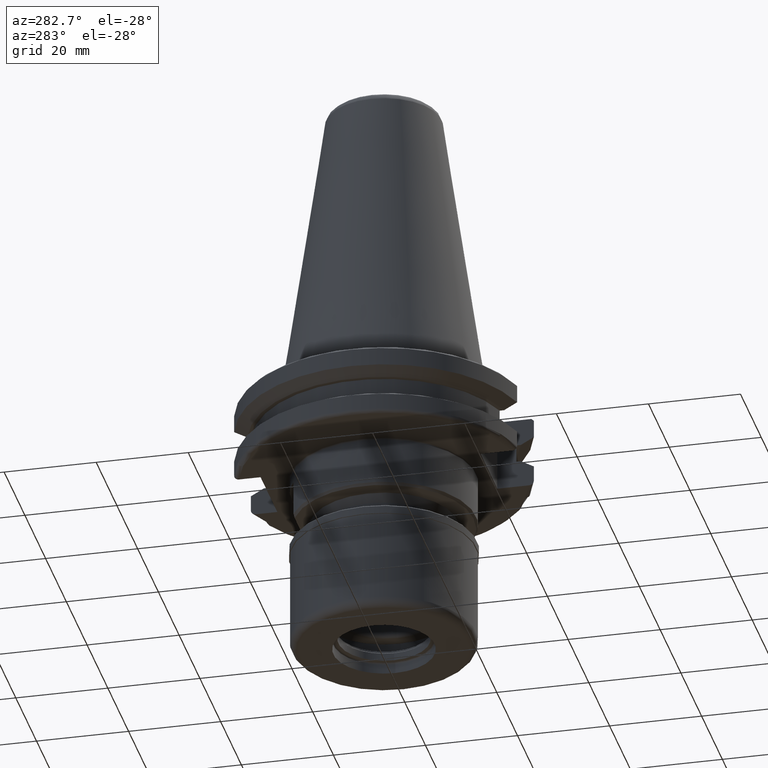
[diagram: clean part render]
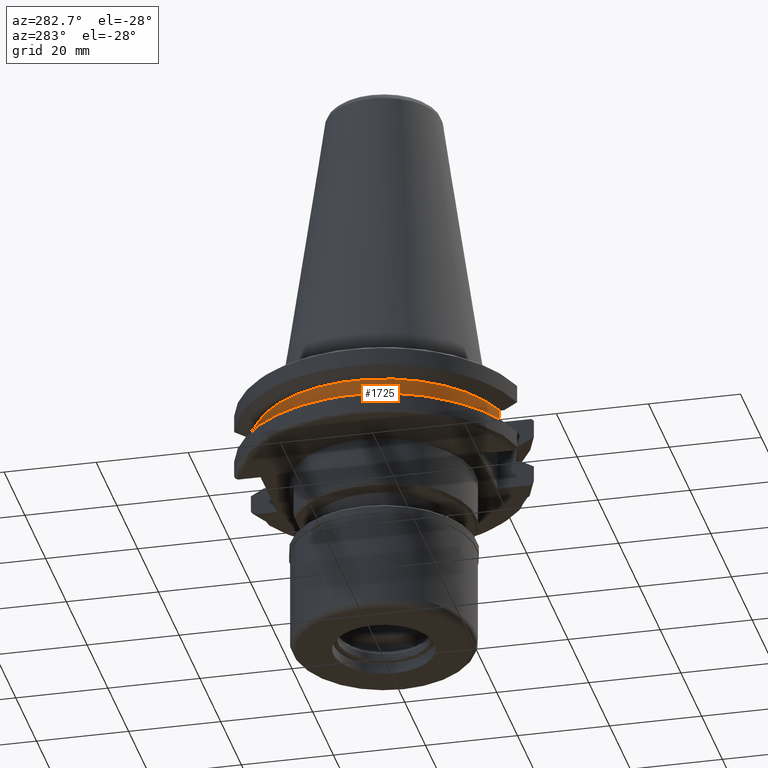
[diagram: same view with one face highlighted and labeled with its STEP entity id]
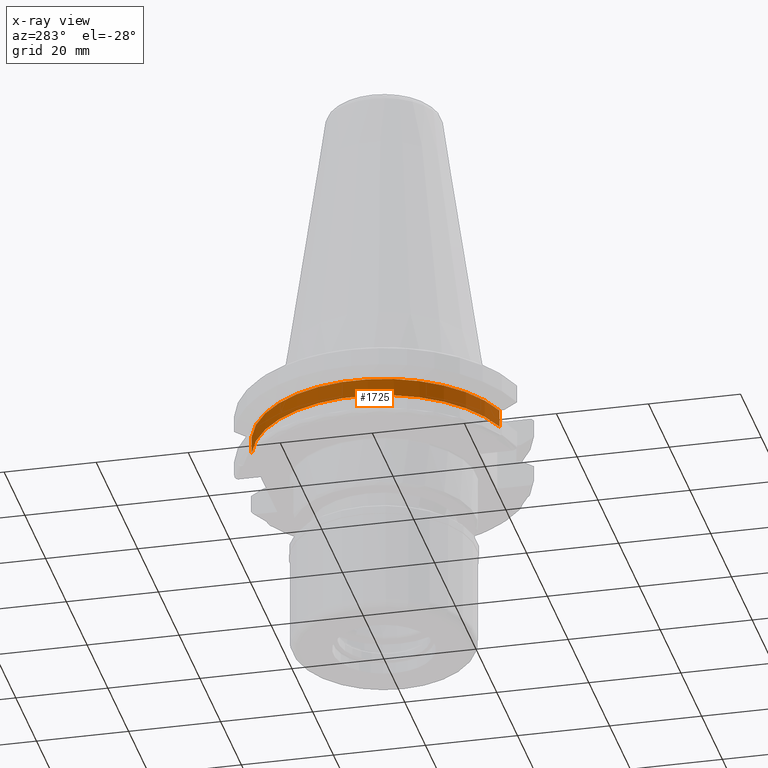
[diagram: x-ray of the same camera — body ghosted, the highlighted face saturated]
A machine part, auxiliary view. The second image highlights one B-rep face of the part: STEP entity #1725.
The next image is the same camera in x-ray: the body ghosted, the highlighted face saturated — about 0% of this face is hidden behind the body in this view.
In plain terms, the highlighted cylindrical surface (partial cylindrical patch) has radius 28.125 mm, axis along (-0, -0, 1).
Its self-contained STEP definition (entity closure, byte-faithful):
#4 = VERTEX_POINT ( 'NONE', #1755 ) ;
#31 = LINE ( 'NONE', #866, #640 ) ;
#67 = VECTOR ( 'NONE', #379, 1000.000000000000000 ) ;
#379 = DIRECTION ( 'NONE',  ( 0.0000000000000000000, 0.0000000000000000000, -1.000000000000000000 ) ) ;
#412 = CARTESIAN_POINT ( 'NONE',  ( 0.0000000000000000000, 0.0000000000000000000, -13.05000000000000604 ) ) ;
#466 = AXIS2_PLACEMENT_3D ( 'NONE', #642, #1349, #2040 ) ;
#508 = DIRECTION ( 'NONE',  ( -0.0000000000000000000, -0.0000000000000000000, 1.000000000000000000 ) ) ;
#548 = EDGE_CURVE ( 'NONE', #752, #1240, #31, .T. ) ;
#640 = VECTOR ( 'NONE', #1962, 1000.000000000000000 ) ;
#642 = CARTESIAN_POINT ( 'NONE',  ( 0.0000000000000000000, 0.0000000000000000000, 69.24999999999997158 ) ) ;
#674 = ORIENTED_EDGE ( 'NONE', *, *, #1558, .F. ) ;
#752 = VERTEX_POINT ( 'NONE', #992 ) ;
#820 = VERTEX_POINT ( 'NONE', #1331 ) ;
#827 = CARTESIAN_POINT ( 'NONE',  ( 0.0000000000000000000, 0.0000000000000000000, -9.150000000000019895 ) ) ;
#866 = CARTESIAN_POINT ( 'NONE',  ( -8.050000000000000711, -26.94834178572033423, 69.24999999999997158 ) ) ;
#922 = CYLINDRICAL_SURFACE ( 'NONE', #466, 28.12500000000001066 ) ;
#930 = ORIENTED_EDGE ( 'NONE', *, *, #1639, .T. ) ;
#981 = ORIENTED_EDGE ( 'NONE', *, *, #1739, .T. ) ;
#992 = CARTESIAN_POINT ( 'NONE',  ( -8.050000000000000711, -26.94834178572033423, -13.05000000000000604 ) ) ;
#1000 = CARTESIAN_POINT ( 'NONE',  ( -8.050000000000000711, 26.94834178572033423, 69.24999999999997158 ) ) ;
#1015 = ORIENTED_EDGE ( 'NONE', *, *, #548, .T. ) ;
#1029 = LINE ( 'NONE', #1000, #67 ) ;
#1044 = AXIS2_PLACEMENT_3D ( 'NONE', #412, #1216, #1802 ) ;
#1111 = EDGE_LOOP ( 'NONE', ( #674, #930, #981, #1015 ) ) ;
#1216 = DIRECTION ( 'NONE',  ( -0.0000000000000000000, -0.0000000000000000000, 1.000000000000000000 ) ) ;
#1240 = VERTEX_POINT ( 'NONE', #2021 ) ;
#1331 = CARTESIAN_POINT ( 'NONE',  ( -8.050000000000000711, 26.94834178572033423, -9.150000000000019895 ) ) ;
#1349 = DIRECTION ( 'NONE',  ( -0.0000000000000000000, -0.0000000000000000000, 1.000000000000000000 ) ) ;
#1558 = EDGE_CURVE ( 'NONE', #820, #1240, #2014, .T. ) ;
#1639 = EDGE_CURVE ( 'NONE', #820, #4, #1029, .T. ) ;
#1725 = ADVANCED_FACE ( 'NONE', ( #1838 ), #922, .T. ) ;
#1729 = DIRECTION ( 'NONE',  ( 1.000000000000000000, 0.0000000000000000000, 0.0000000000000000000 ) ) ;
#1739 = EDGE_CURVE ( 'NONE', #4, #752, #1882, .T. ) ;
#1755 = CARTESIAN_POINT ( 'NONE',  ( -8.050000000000000711, 26.94834178572033423, -13.05000000000000604 ) ) ;
#1802 = DIRECTION ( 'NONE',  ( 1.000000000000000000, 0.0000000000000000000, 0.0000000000000000000 ) ) ;
#1838 = FACE_OUTER_BOUND ( 'NONE', #1111, .T. ) ;
#1882 = CIRCLE ( 'NONE', #1044, 28.12500000000001066 ) ;
#1962 = DIRECTION ( 'NONE',  ( -0.0000000000000000000, -0.0000000000000000000, 1.000000000000000000 ) ) ;
#1996 = AXIS2_PLACEMENT_3D ( 'NONE', #827, #508, #1729 ) ;
#2014 = CIRCLE ( 'NONE', #1996, 28.12500000000001066 ) ;
#2021 = CARTESIAN_POINT ( 'NONE',  ( -8.050000000000000711, -26.94834178572033423, -9.150000000000019895 ) ) ;
#2040 = DIRECTION ( 'NONE',  ( 1.000000000000000000, 0.0000000000000000000, 0.0000000000000000000 ) ) ;